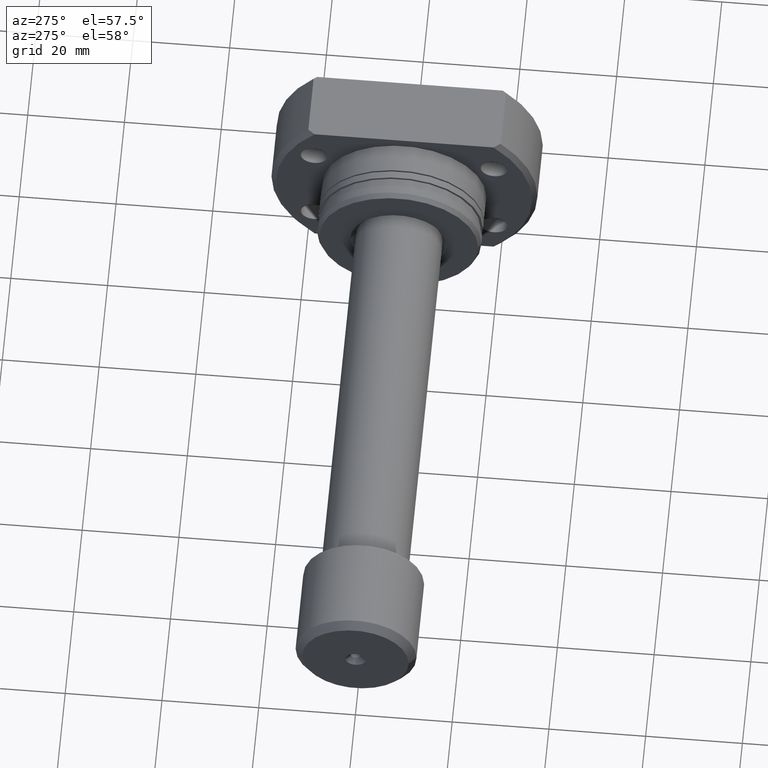
[diagram: clean part render]
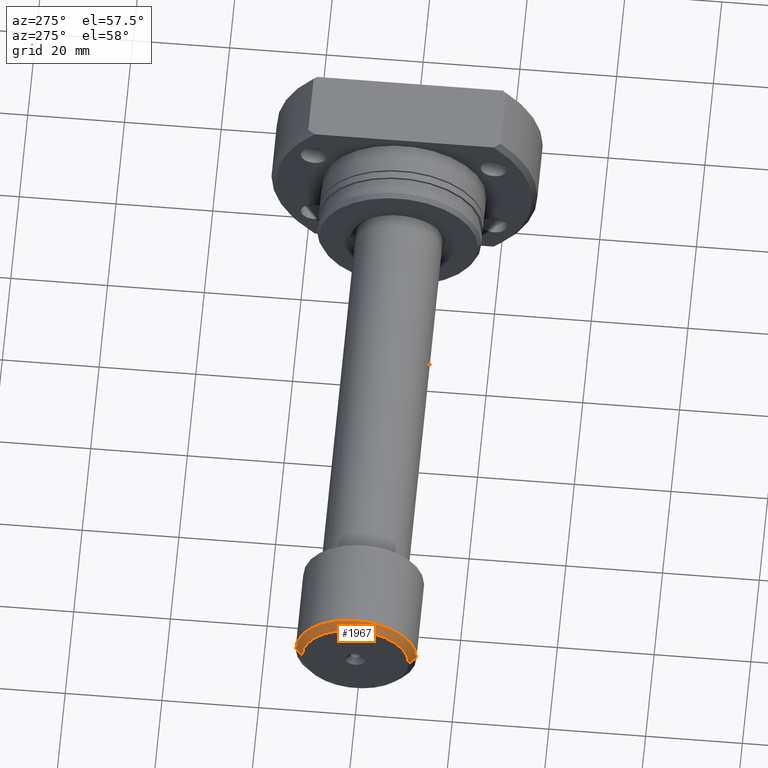
[diagram: same view with one face highlighted and labeled with its STEP entity id]
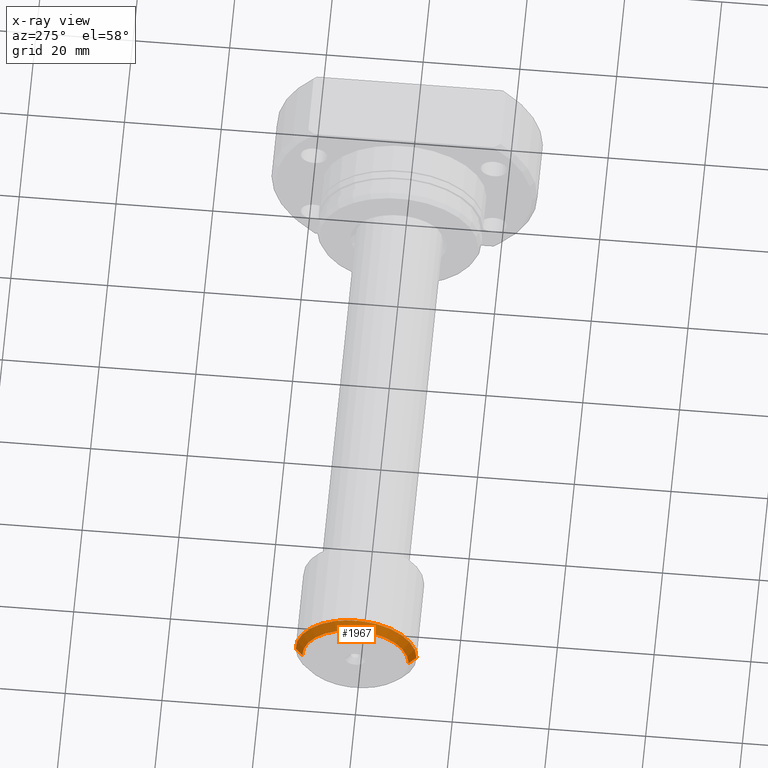
[diagram: x-ray of the same camera — body ghosted, the highlighted face saturated]
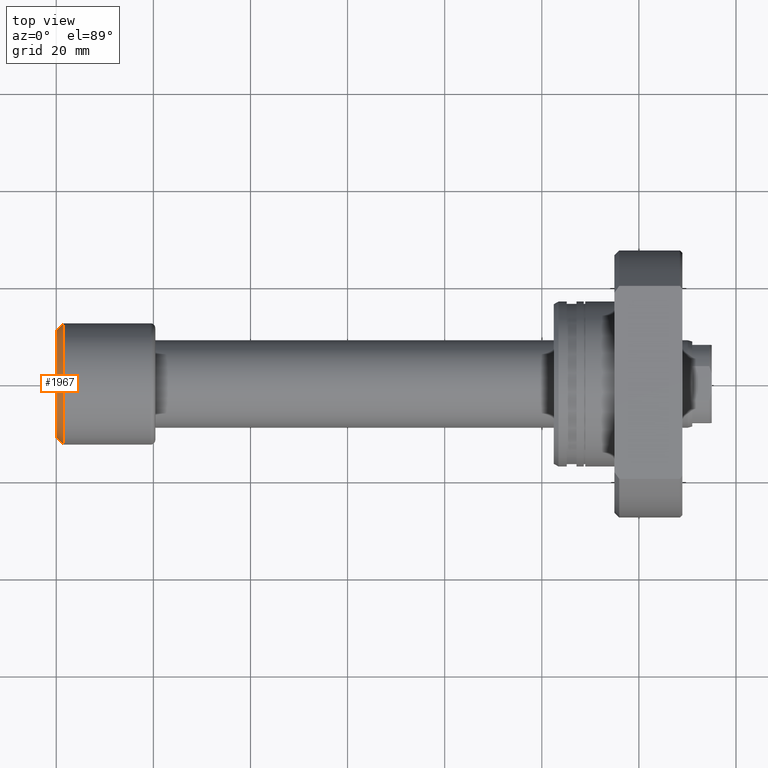
[diagram: same view with one face highlighted and labeled with its STEP entity id]
A machine part, auxiliary view. The second image highlights one B-rep face of the part: STEP entity #1967.
The next image is the same camera in x-ray: the body ghosted, the highlighted face saturated — about 0% of this face is hidden behind the body in this view.
A second angle (top view) of the same face is appended — the face is thin or edge-on in the first view.
In plain terms, the highlighted conical surface has half-angle 45 deg.
Its self-contained STEP definition (entity closure, byte-faithful):
#47 = CARTESIAN_POINT ( 'NONE',  ( 1.347111479062088602E-15, -11.00000000000000178, 1.347111479062088602E-15 ) ) ;
#119 = CIRCLE ( 'NONE', #1950, 11.00000000000000178 ) ;
#133 = CARTESIAN_POINT ( 'NONE',  ( 1.500000000000001554, 1.604313483103600319E-17, 0.000000000000000000 ) ) ;
#300 = FACE_OUTER_BOUND ( 'NONE', #3016, .T. ) ;
#380 = CONICAL_SURFACE ( 'NONE', #1857, 11.00000000000000178, 0.7853981633974480570 ) ;
#406 = ORIENTED_EDGE ( 'NONE', *, *, #2406, .T. ) ;
#487 = VECTOR ( 'NONE', #870, 999.9999999999998863 ) ;
#558 = DIRECTION ( 'NONE',  ( -1.000000000000000000, -1.069542322069065801E-17, -0.000000000000000000 ) ) ;
#616 = DIRECTION ( 'NONE',  ( 1.734723475976807094E-17, -1.000000000000000000, 0.000000000000000000 ) ) ;
#870 = DIRECTION ( 'NONE',  ( 0.7071067811865477948, 0.7071067811865473507, 0.000000000000000000 ) ) ;
#908 = ORIENTED_EDGE ( 'NONE', *, *, #2783, .T. ) ;
#1050 = EDGE_CURVE ( 'NONE', #2592, #2266, #1882, .T. ) ;
#1234 = ORIENTED_EDGE ( 'NONE', *, *, #1050, .F. ) ;
#1259 = DIRECTION ( 'NONE',  ( 1.000000000000000000, 1.069542322069065801E-17, 0.000000000000000000 ) ) ;
#1314 = CARTESIAN_POINT ( 'NONE',  ( 1.229461823634491368E-15, 1.314961453745302249E-32, 0.000000000000000000 ) ) ;
#1466 = CARTESIAN_POINT ( 'NONE',  ( 1.111812168206894135E-15, 11.00000000000000178, 0.000000000000000000 ) ) ;
#1525 = CARTESIAN_POINT ( 'NONE',  ( 1.500000000000001332, 12.50000000000000000, 0.000000000000000000 ) ) ;
#1552 = CIRCLE ( 'NONE', #3079, 12.50000000000000000 ) ;
#1567 = VERTEX_POINT ( 'NONE', #1620 ) ;
#1620 = CARTESIAN_POINT ( 'NONE',  ( 1.500000000000001776, -12.50000000000000000, 1.530808498934191521E-15 ) ) ;
#1654 = DIRECTION ( 'NONE',  ( 0.7071067811865477948, -0.7071067811865473507, 8.659560562354931626E-17 ) ) ;
#1678 = VERTEX_POINT ( 'NONE', #2444 ) ;
#1831 = LINE ( 'NONE', #47, #2116 ) ;
#1857 = AXIS2_PLACEMENT_3D ( 'NONE', #1314, #1259, #2613 ) ;
#1882 = LINE ( 'NONE', #3102, #487 ) ;
#1950 = AXIS2_PLACEMENT_3D ( 'NONE', #2549, #558, #3024 ) ;
#1967 = ADVANCED_FACE ( 'NONE', ( #300 ), #380, .T. ) ;
#2116 = VECTOR ( 'NONE', #1654, 999.9999999999998863 ) ;
#2266 = VERTEX_POINT ( 'NONE', #1525 ) ;
#2354 = DIRECTION ( 'NONE',  ( -1.000000000000000000, -1.069542322069065801E-17, -0.000000000000000000 ) ) ;
#2384 = EDGE_CURVE ( 'NONE', #1678, #2592, #119, .T. ) ;
#2406 = EDGE_CURVE ( 'NONE', #1678, #1567, #1831, .T. ) ;
#2444 = CARTESIAN_POINT ( 'NONE',  ( 1.347111479062088602E-15, -11.00000000000000178, 1.438959988998140160E-15 ) ) ;
#2549 = CARTESIAN_POINT ( 'NONE',  ( 1.229461823634491368E-15, 1.314961453745302249E-32, 0.000000000000000000 ) ) ;
#2592 = VERTEX_POINT ( 'NONE', #1466 ) ;
#2613 = DIRECTION ( 'NONE',  ( -1.069542322069065647E-17, 1.000000000000000000, 0.000000000000000000 ) ) ;
#2725 = ORIENTED_EDGE ( 'NONE', *, *, #2384, .F. ) ;
#2783 = EDGE_CURVE ( 'NONE', #1567, #2266, #1552, .T. ) ;
#3016 = EDGE_LOOP ( 'NONE', ( #2725, #406, #908, #1234 ) ) ;
#3024 = DIRECTION ( 'NONE',  ( 1.069542322069065647E-17, -1.000000000000000000, 0.000000000000000000 ) ) ;
#3079 = AXIS2_PLACEMENT_3D ( 'NONE', #133, #2354, #616 ) ;
#3102 = CARTESIAN_POINT ( 'NONE',  ( 1.111812168206894135E-15, 11.00000000000000178, 0.000000000000000000 ) ) ;